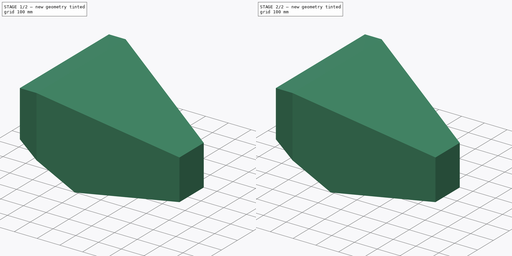
[diagram: build sequence overview — one tinted view per stage of 2, left to right]
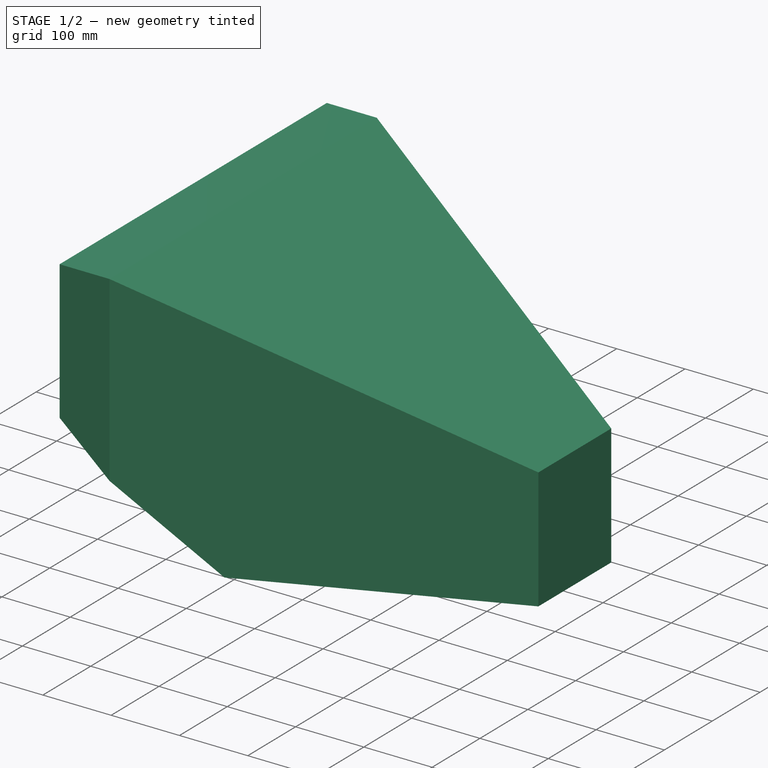
[diagram: stage 1 of 2 — iso view after this stage's code; geometry added in this stage tinted green]
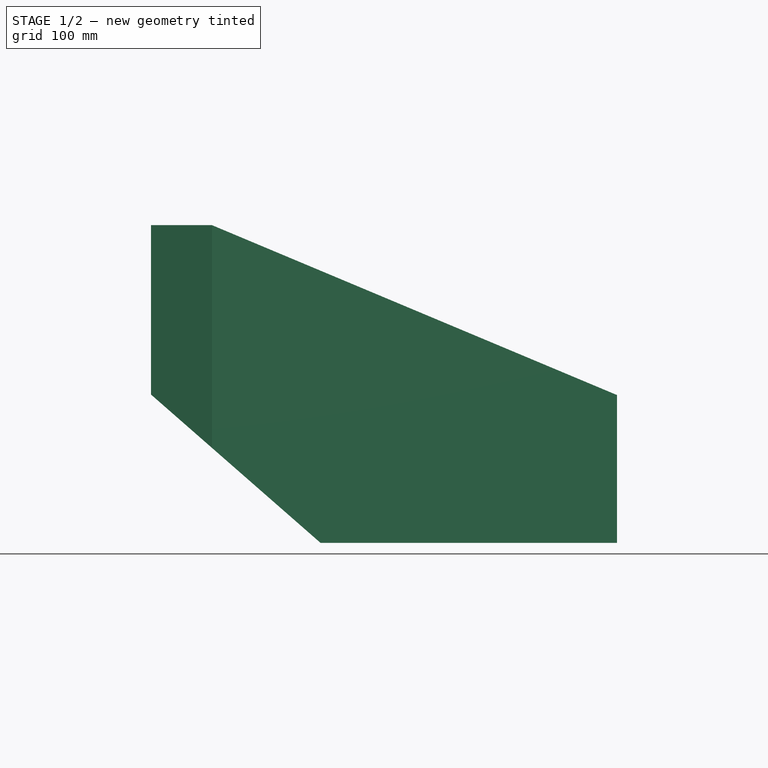
[diagram: stage 1 of 2 — front view after this stage's code; geometry added in this stage tinted green]
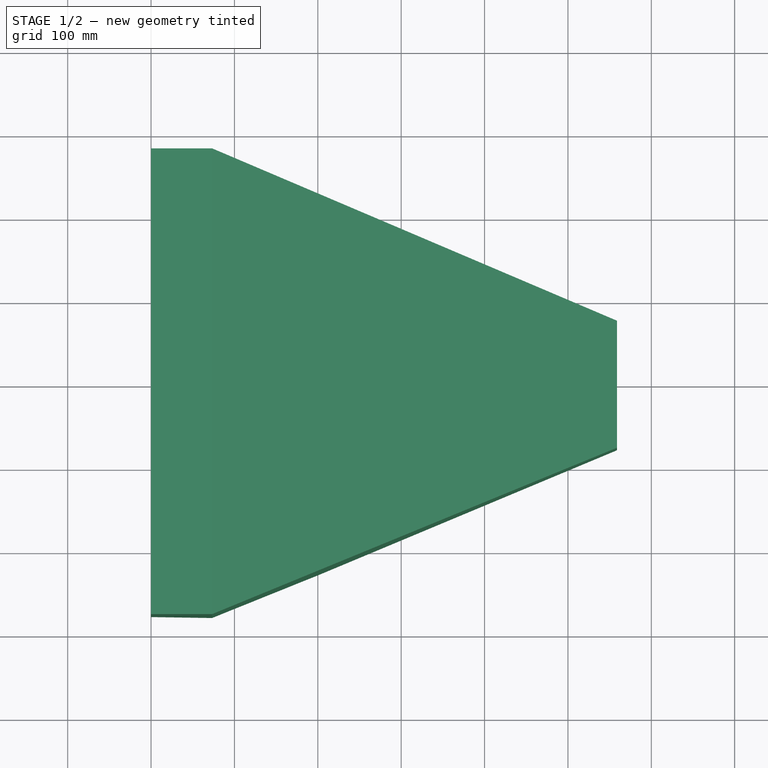
[diagram: stage 1 of 2 — top view after this stage's code; geometry added in this stage tinted green]
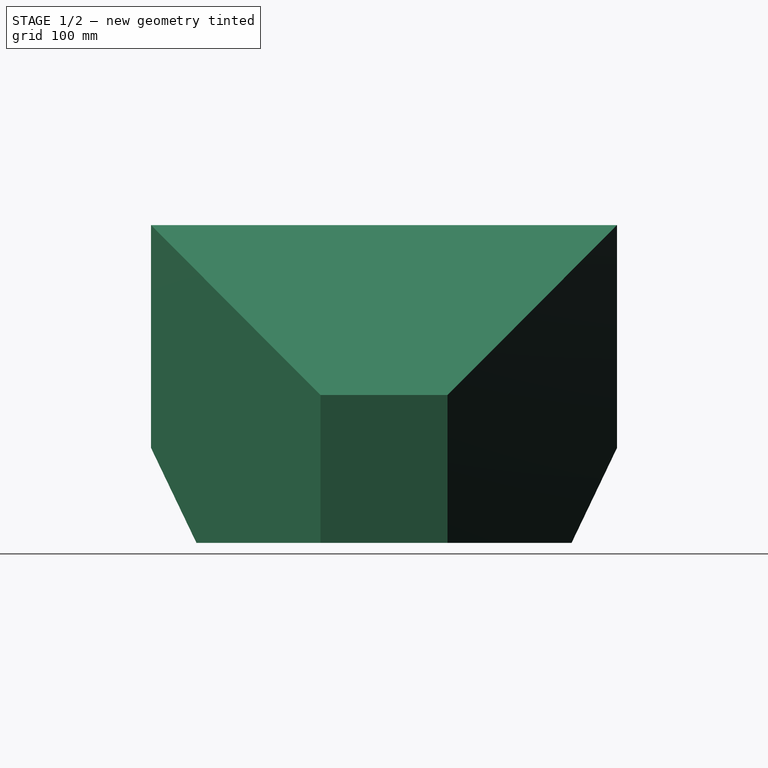
[diagram: stage 1 of 2 — right view after this stage's code; geometry added in this stage tinted green]
FCSTD DOCUMENT  (FreeCAD 1.1R40971 (Git))
Label: foamcore-duct
License: All rights reserved
LicenseURL: http://en.wikipedia.org/wiki/All_rights_reserved
objects: Sketcher::SketchObject×2, PartDesign::Thickness×2, App::Point×1, PartDesign::Pad×1, PartDesign::Pocket×1, PartDesign::Body×1
note: 17 computed .brp shape members not serialized (recipe doc carries the construction recipe); baked Part::Feature solids carry a one-line shape summary decoded from their .brp

FEATURE [Sketcher::SketchObject] Sketch005  label="straightwall"
  ArcFitTolerance = 1e-06
  AttachmentSupport = -> [XY_Plane]
  ExternalTypes = [0]
  FullyConstrained = false
  MakeInternals = false
  MapMode = 5
  sketch-geometry (8):
    g0: LineSegment StartX=73.152 StartY=-279.4 StartZ=0 EndX=558.8 EndY=-76.2 EndZ=0
    g1: LineSegment StartX=558.8 StartY=-76.2 StartZ=0 EndX=558.8 EndY=76.2 EndZ=0
    g2: LineSegment StartX=558.8 StartY=76.2 StartZ=0 EndX=73.152 EndY=279.4 EndZ=0
    g3: LineSegment StartX=73.152 StartY=279.4 StartZ=0 EndX=73.152 EndY=424.054 EndZ=0
    g4: LineSegment StartX=73.152 StartY=424.054 StartZ=0 EndX=649.354 EndY=424.054 EndZ=0
    g5: LineSegment StartX=649.354 StartY=424.054 StartZ=0 EndX=649.354 EndY=-366.374 EndZ=0
    g6: LineSegment StartX=649.354 StartY=-366.374 StartZ=0 EndX=73.152 EndY=-366.374 EndZ=0
    g7: LineSegment StartX=73.152 StartY=-366.374 StartZ=0 EndX=73.152 EndY=-279.4 EndZ=0
  constraints (19):
    c: Coincident(g0,g1)
    c: Coincident(g1,g2)
    c: DistanceY(g1,g1) = 152.4
    c: DistanceY(g0,g2) = 558.8
    c: Symmetric(g0,g2,g-1)
    c: Symmetric(g0,g1,g-1)
    c: DistanceX(g-1,g0) = 73.152
    c: DistanceX(g-1,g1) = 558.8
    c: Coincident(g2,g3)
    c: Vertical(g3)
    c: Coincident(g3,g4)
    c: Horizontal(g4)
    c: Coincident(g4,g5)
    c: Vertical(g5)
    c: Coincident(g5,g6)
    c: Horizontal(g6)
    c: Coincident(g6,g7)
    c: Coincident(g7,g0)
    c: Vertical(g7)
FEATURE [App::Point] Origin001  label="Origin"
  Role = Origin
FEATURE [Sketcher::SketchObject] Sketch
  ArcFitTolerance = 1e-06
  AttachmentSupport = -> [XZ_Plane]
  ExternalTypes = [0]
  FullyConstrained = true
  MakeInternals = false
  MapMode = 5
  Placement = pos=(0,0,0) rot=(1,0,0;1.5708rad)
  sketch-geometry (7):
    g0: LineSegment StartX=0 StartY=-88.9 StartZ=0 EndX=0 EndY=-292.1 EndZ=0
    g1: LineSegment StartX=0 StartY=-292.1 StartZ=0 EndX=203.2 EndY=-469.9 EndZ=0
    g2: LineSegment StartX=203.2 StartY=-469.9 StartZ=0 EndX=558.8 EndY=-469.9 EndZ=0
    g3: LineSegment StartX=558.8 StartY=-469.9 StartZ=0 EndX=558.8 EndY=-292.608 EndZ=0
    g4: LineSegment StartX=558.8 StartY=-292.608 StartZ=0 EndX=73.152 EndY=-88.9 EndZ=0
    g5: LineSegment StartX=73.152 StartY=-88.9 StartZ=0 EndX=0 EndY=-88.9 EndZ=0
    g6: GeomPoint X=0 Y=0 Z=0
  constraints (19):
    c: Coincident(g0,g1)
    c: Coincident(g1,g2)
    c: Coincident(g2,g3)
    c: Coincident(g4,g5)
    c: Coincident(g5,g0)
    c: Horizontal(g5)
    c: Vertical(g0)
    c: Vertical(g3)
    c: DistanceX(g5,g5) = 73.152
    c: DistanceY(g0,g0) = 203.2
    c: DistanceX(g1,g1) = 203.2
    c: DistanceX(g0,g3) = 558.8
    c: Vertical(g6,g0)
    c: DistanceY(g0,g6) = 88.9
    c: Coincident(g6,g-1)
    c: Coincident(g4,g3)
    c: DistanceY(g1,g0) = 381
    c: Horizontal(g2)
    c: DistanceY(g2,g3) = 177.292
FEATURE [PartDesign::Pad] Pad
  Direction = (0,-1,2e-16)
  Length = 558.8
  Length2 = 10
  Midplane = true
  Placement = pos=(0,0,0) rot=(1,0,0;1.5708rad)
  Profile = -> Sketch
  ReferenceAxis = -> Sketch [N_Axis]
  Suppressed = false
  Type = 0
FEATURE [PartDesign::Pocket] Pocket
  BaseFeature = -> Pad
  Direction = (0,0,-1)
  Length = 5
  Length2 = 5
  Midplane = true
  Placement = pos=(0,0,0) rot=(1,0,0;1.5708rad)
  Profile = -> Sketch005
  ReferenceAxis = -> Sketch005 [N_Axis]
  Suppressed = false
  Type = 1
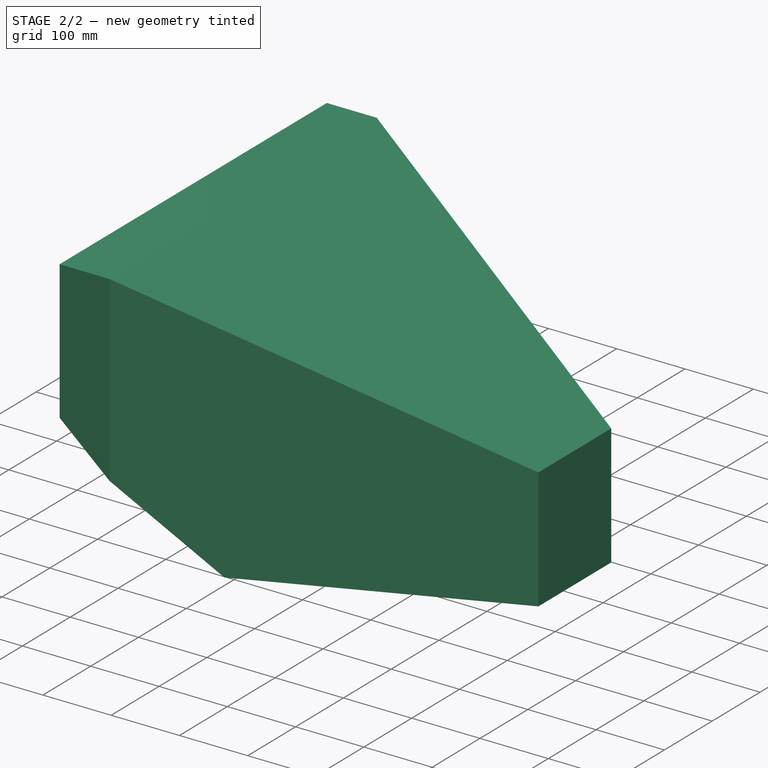
[diagram: stage 2 of 2 — iso view after this stage's code; geometry added in this stage tinted green]
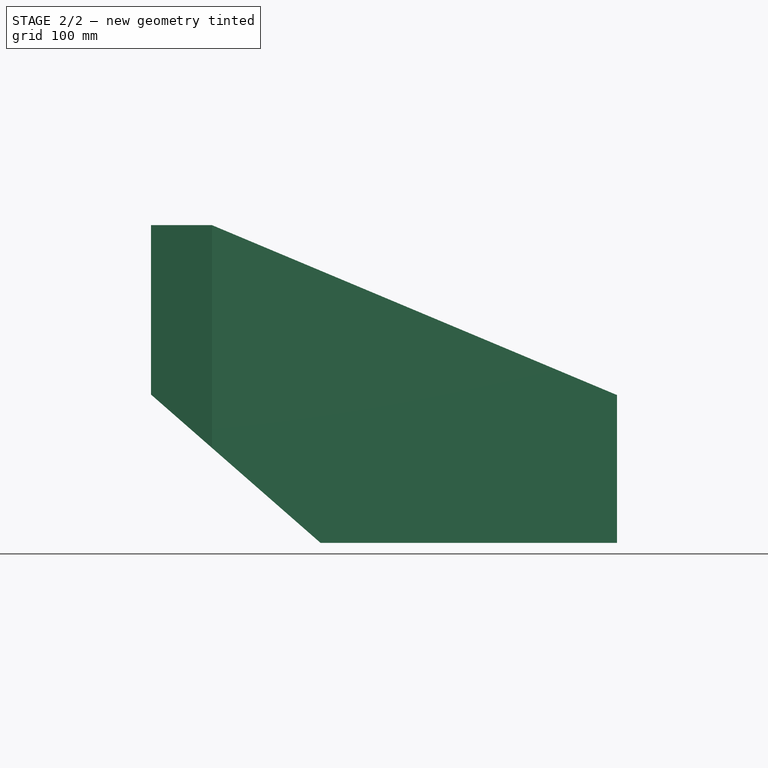
[diagram: stage 2 of 2 — front view after this stage's code; geometry added in this stage tinted green]
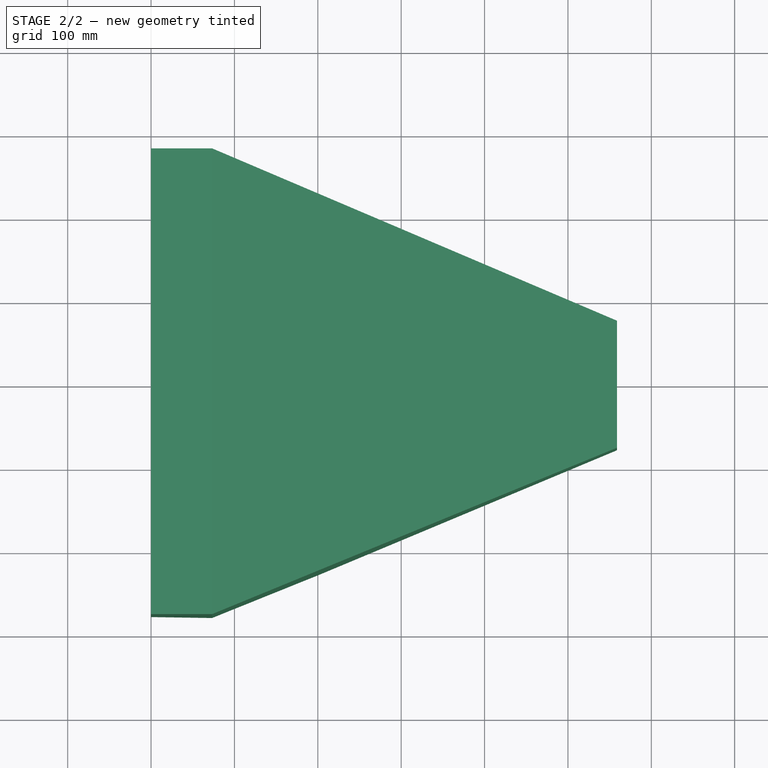
[diagram: stage 2 of 2 — top view after this stage's code; geometry added in this stage tinted green]
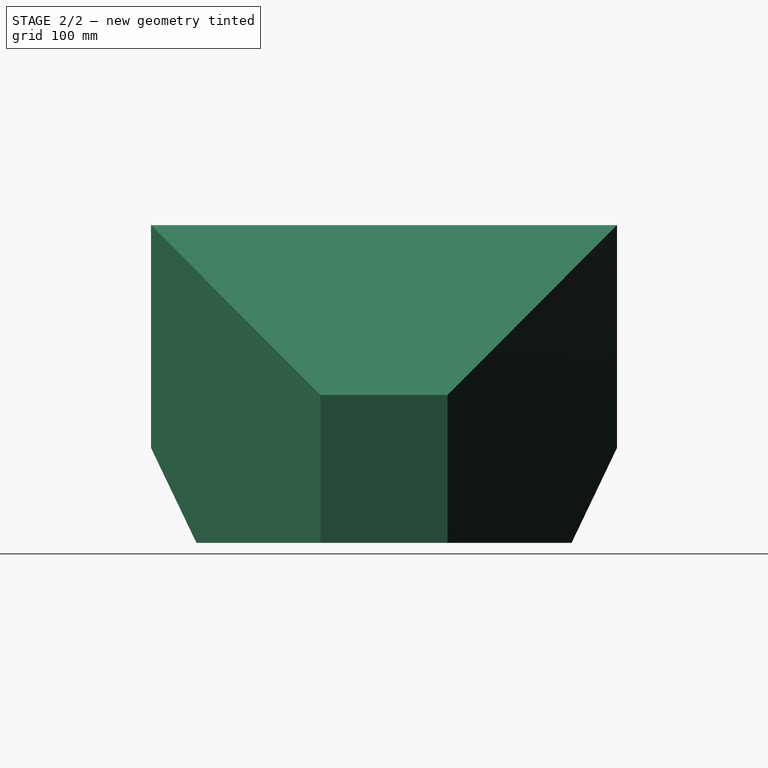
[diagram: stage 2 of 2 — right view after this stage's code; geometry added in this stage tinted green]
FEATURE [PartDesign::Thickness] Thickness
  Base = -> Pocket [Face2,Face10]
  BaseFeature = -> Pocket
  Intersection = false
  Join = 1
  Mode = 1
  Reversed = true
  SupportTransform = false
  Suppressed = false
  Value = 6.35
FEATURE [PartDesign::Thickness] Thickness001
  Base = -> Thickness [Face9,Face10]
  BaseFeature = -> Thickness
  Intersection = false
  Join = 1
  Mode = 0
  Reversed = true
  SupportTransform = false
  Suppressed = false
  Value = 3.175
FEATURE [PartDesign::Body] Body  label="elbow"
  AllowCompound = false
  Group = -> [Sketch005,Sketch,Pad,Pocket,Thickness,Thickness001]
  Origin = -> Origin
  Tip = -> Thickness001
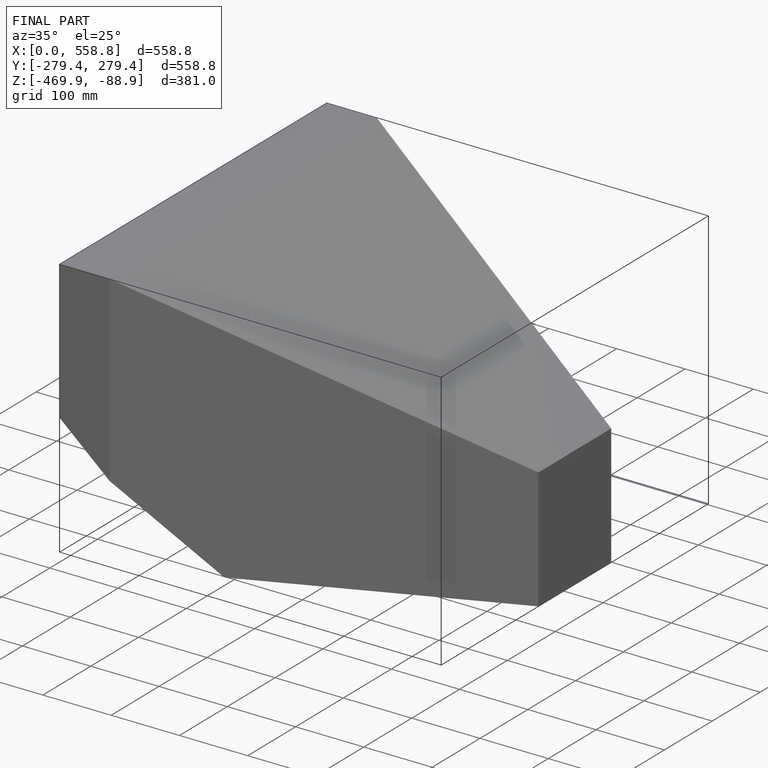
[diagram: finished part — iso view with bounding-box wireframe]
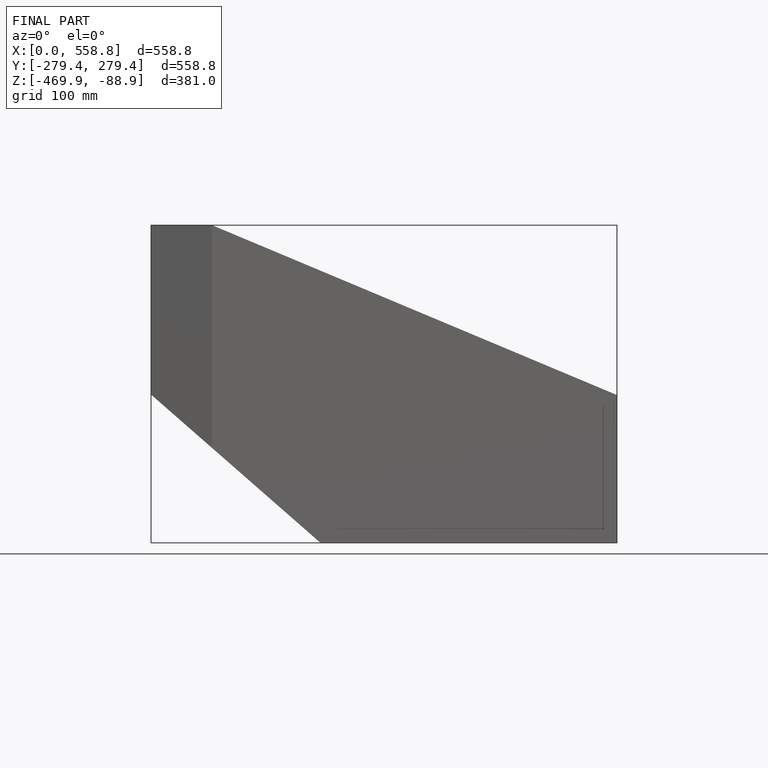
[diagram: finished part — front view with bounding-box wireframe]
